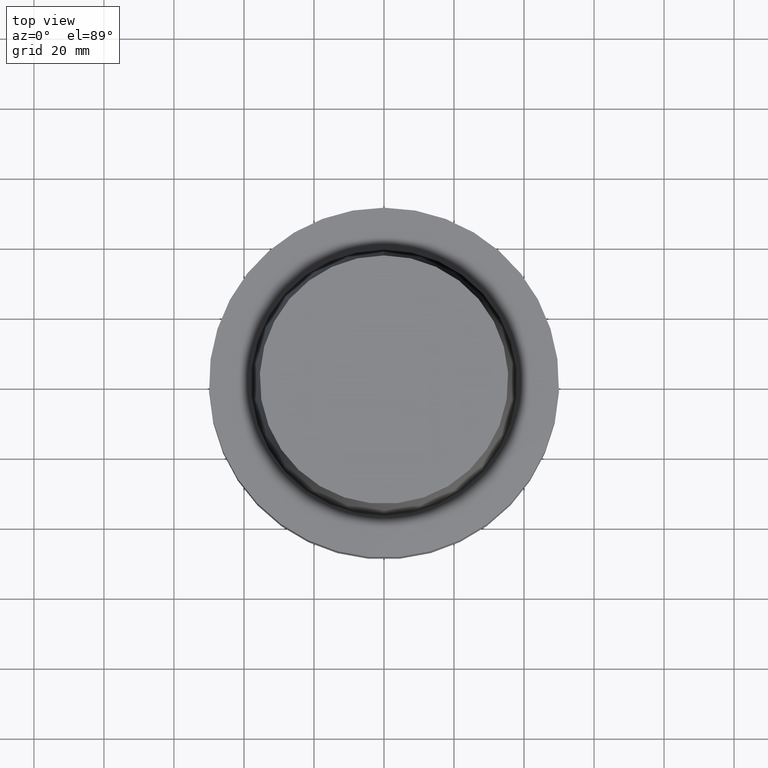
[diagram: clean part render]
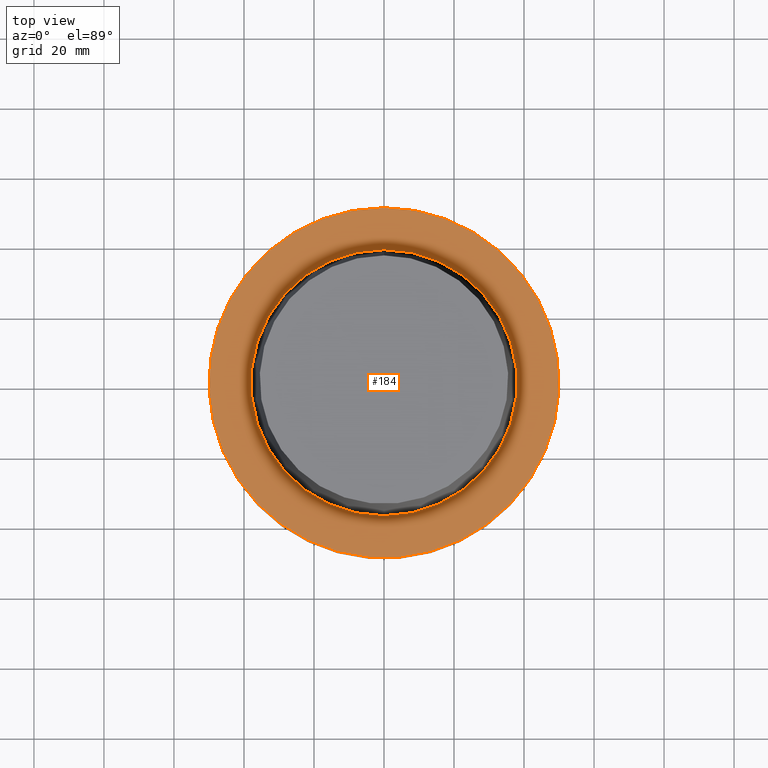
[diagram: same view with one face highlighted and labeled with its STEP entity id]
A machine part, top view. The second image highlights one B-rep face of the part: STEP entity #184.
In plain terms, the highlighted planar face has unit normal (-0, -0, 1).
Its self-contained STEP definition (entity closure, byte-faithful):
#108=EDGE_CURVE('Unnamed[1]',#261,#261,#262,.T.);
#145=EDGE_CURVE('Unnamed[1]',#320,#320,#321,.T.);
#184=ADVANCED_FACE('Unnamed[1]',(#380,#381),#382,.T.);
#261=VERTEX_POINT('',#463);
#262=CIRCLE('',#464,37.9999999999349);
#320=VERTEX_POINT('',#536);
#321=CIRCLE('',#537,50.0);
#380=FACE_OUTER_BOUND('',#613,.T.);
#381=FACE_BOUND('',#614,.T.);
#382=PLANE('',#615);
#463=CARTESIAN_POINT('',(-3.3636548776863E-032,37.9999999999349,-2.44634216324803E-015));
#464=AXIS2_PLACEMENT_3D('',#683,#684,#685);
#536=CARTESIAN_POINT('',(-1.81547968506605E-031,50.0,-9.76766004263236E-016));
#537=AXIS2_PLACEMENT_3D('',#751,#752,#753);
#613=EDGE_LOOP('',(#815));
#614=EDGE_LOOP('',(#816));
#615=AXIS2_PLACEMENT_3D('',#817,#818,#819);
#683=CARTESIAN_POINT('',(0.0,0.0,0.0));
#684=DIRECTION('',(6.12323399573677E-017,1.22464679914735E-016,-1.0));
#685=DIRECTION('',(-1.23259516440783E-032,1.0,1.22464679914735E-016));
#751=CARTESIAN_POINT('',(0.0,0.0,0.0));
#752=DIRECTION('',(6.12323399573677E-017,1.22464679914735E-016,-1.0));
#753=DIRECTION('',(-1.23259516440783E-032,1.0,1.22464679914735E-016));
#815=ORIENTED_EDGE('',*,*,#145,.F.);
#816=ORIENTED_EDGE('',*,*,#108,.T.);
#817=CARTESIAN_POINT('',(-1.07592258641734E-031,43.9999999999675,-1.71155408375563E-015));
#818=DIRECTION('',(-6.12323399573677E-017,-1.22464679914735E-016,1.0));
#819=DIRECTION('',(1.23259516440783E-032,-1.0,-1.22464679914735E-016));